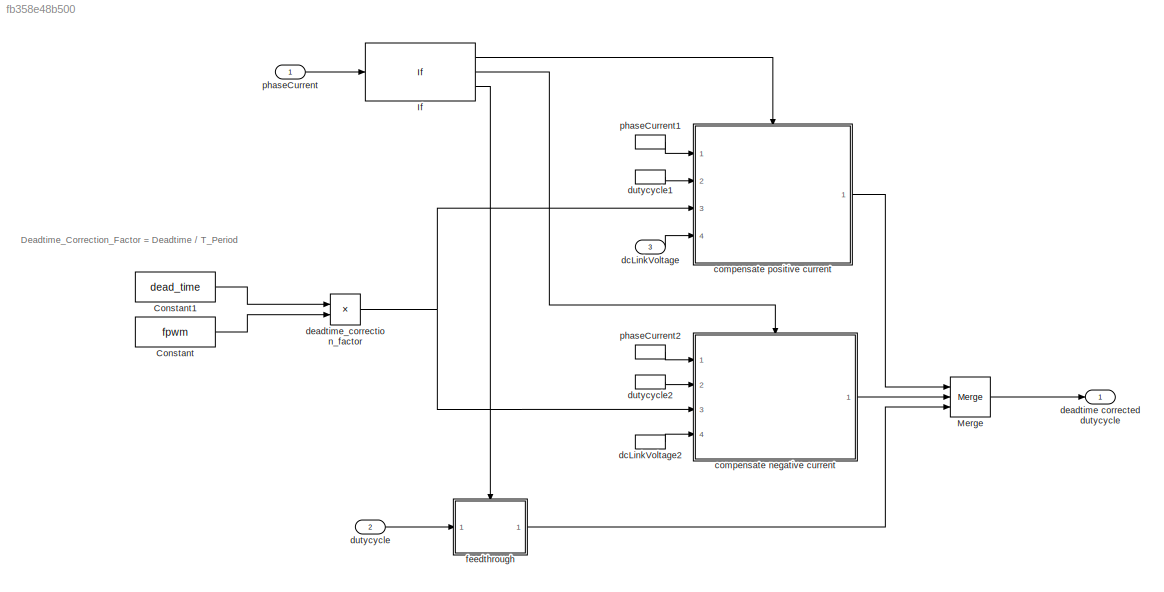
MODEL slx_fb358e48b500
KIND model
CONFIG AbsTol = auto
CONFIG EnableMultiTasking = off
CONFIG FixedStep = auto
CONFIG MaxStep = auto
CONFIG MinStep = auto
CONFIG PostLoadFcn = , if any(exist('dsrtsu_mdlpostloadfcn', 'file') == [2, 3, 6]), try dsrtsu_mdlpostloadfcn('Execute', bdroot); catch fprintf('Error in PostLoadFcn (dsrtsu_mdlpostloadfcn) for model "%s":\n %s\n', bdroot, lasterr); end, end, \n
CONFIG RelTol = 1e-3
CONFIG SampleTimeConstraint = Unconstrained
CONFIG SolverName = FixedStepAuto
CONFIG StartTime = 0.0
CONFIG StopTime = 10.0
BLOCK [Constant] Constant
  Value = fpwm
BLOCK [Constant] Constant1
  Value = dead_time
BLOCK [If] If
  ElseIfExpressions = u1 < 0
  Ports = [1, 3]
BLOCK [Merge] Merge
  Inputs = 3
  Ports = [3, 1]
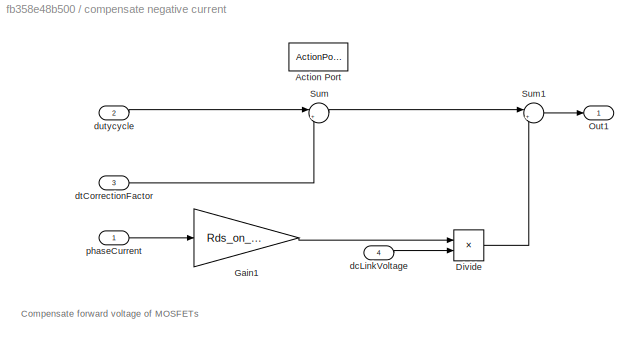
BLOCK [SubSystem] compensate negative current
  Ports = [4, 1, 0, 0, 0, 0, 0, 1]
  RequestExecContextInheritance = off
  TreatAsAtomicUnit = on
BLOCK [ActionPort] compensate negative current/Action Port
  ActionPortLabel = elseif(u1 < 0)
BLOCK [Product] compensate negative current/Divide
  Inputs = */
  Ports = [2, 1]
BLOCK [Gain] compensate negative current/Gain1
  Gain = Rds_on_module
BLOCK [Outport] compensate negative current/Out1
  VectorParamsAs1DForOutWhenUnconnected = off
BLOCK [Sum] compensate negative current/Sum
  Inputs = |+-
  Ports = [2, 1]
BLOCK [Sum] compensate negative current/Sum1
  Inputs = |+-
  Ports = [2, 1]
BLOCK [Inport] compensate negative current/dcLinkVoltage
  Port = 4
BLOCK [Inport] compensate negative current/dtCorrectionFactor
  Port = 3
BLOCK [Inport] compensate negative current/dutycycle
  Port = 2
BLOCK [Inport] compensate negative current/phaseCurrent
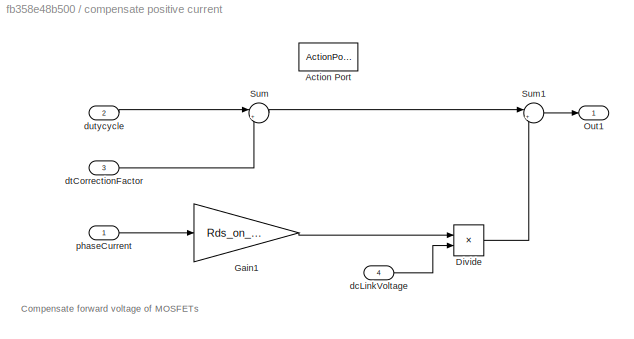
BLOCK [SubSystem] compensate positive current
  Ports = [4, 1, 0, 0, 0, 0, 0, 1]
  RequestExecContextInheritance = off
  TreatAsAtomicUnit = on
BLOCK [ActionPort] compensate positive current/Action Port
  ActionPortLabel = if(u1 > 0)
BLOCK [Product] compensate positive current/Divide
  Inputs = */
  Ports = [2, 1]
BLOCK [Gain] compensate positive current/Gain1
  Gain = Rds_on_module
BLOCK [Outport] compensate positive current/Out1
  VectorParamsAs1DForOutWhenUnconnected = off
BLOCK [Sum] compensate positive current/Sum
  Inputs = |++
  Ports = [2, 1]
BLOCK [Sum] compensate positive current/Sum1
  Inputs = |++
  Ports = [2, 1]
BLOCK [Inport] compensate positive current/dcLinkVoltage
  Port = 4
BLOCK [Inport] compensate positive current/dtCorrectionFactor
  Port = 3
BLOCK [Inport] compensate positive current/dutycycle
  Port = 2
BLOCK [Inport] compensate positive current/phaseCurrent
BLOCK [Inport] dcLinkVoltage
  Port = 3
BLOCK [InportShadow] dcLinkVoltage2
  Port = 3
BLOCK [Outport] deadtime corrected dutycycle
  VectorParamsAs1DForOutWhenUnconnected = off
BLOCK [Product] deadtime_correction_factor
  Ports = [2, 1]
BLOCK [Inport] dutycycle
  Port = 2
BLOCK [InportShadow] dutycycle1
  Port = 2
BLOCK [InportShadow] dutycycle2
  Port = 2
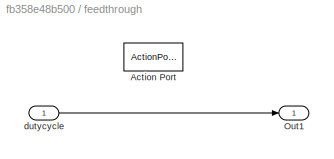
BLOCK [SubSystem] feedthrough
  Ports = [1, 1, 0, 0, 0, 0, 0, 1]
  RequestExecContextInheritance = off
  TreatAsAtomicUnit = on
BLOCK [ActionPort] feedthrough/Action Port
  ActionPortLabel = else
BLOCK [Outport] feedthrough/Out1
  VectorParamsAs1DForOutWhenUnconnected = off
BLOCK [Inport] feedthrough/dutycycle
BLOCK [Inport] phaseCurrent
BLOCK [InportShadow] phaseCurrent1
BLOCK [InportShadow] phaseCurrent2
ANNOTATION (root): Deadtime_Correction_Factor = Deadtime / T_Period
ANNOTATION compensate negative current: Compensate forward voltage of MOSFETs
ANNOTATION compensate positive current: Compensate forward voltage of MOSFETs
LINE Constant1:1 -> deadtime_correction_factor:1
LINE Constant:1 -> deadtime_correction_factor:2
LINE If:1 -> compensate positive current:ifaction
LINE If:2 -> compensate negative current:ifaction
LINE If:3 -> feedthrough:ifaction
LINE Merge:1 -> deadtime corrected dutycycle:1
LINE compensate negative current/Divide:1 -> compensate negative current/Sum1:2
LINE compensate negative current/Gain1:1 -> compensate negative current/Divide:1
LINE compensate negative current/Sum1:1 -> compensate negative current/Out1:1
LINE compensate negative current/Sum:1 -> compensate negative current/Sum1:1
LINE compensate negative current/dcLinkVoltage:1 -> compensate negative current/Divide:2
LINE compensate negative current/dtCorrectionFactor:1 -> compensate negative current/Sum:2
LINE compensate negative current/dutycycle:1 -> compensate negative current/Sum:1
LINE compensate negative current/phaseCurrent:1 -> compensate negative current/Gain1:1
LINE compensate negative current:1 -> Merge:2
LINE compensate positive current/Divide:1 -> compensate positive current/Sum1:2
LINE compensate positive current/Gain1:1 -> compensate positive current/Divide:1
LINE compensate positive current/Sum1:1 -> compensate positive current/Out1:1
LINE compensate positive current/Sum:1 -> compensate positive current/Sum1:1
LINE compensate positive current/dcLinkVoltage:1 -> compensate positive current/Divide:2
LINE compensate positive current/dtCorrectionFactor:1 -> compensate positive current/Sum:2
LINE compensate positive current/dutycycle:1 -> compensate positive current/Sum:1
LINE compensate positive current/phaseCurrent:1 -> compensate positive current/Gain1:1
LINE compensate positive current:1 -> Merge:1
LINE dcLinkVoltage2:1 -> compensate negative current:4
LINE dcLinkVoltage:1 -> compensate positive current:4
NET deadtime_correction_factor:1 -> compensate negative current:3, compensate positive current:3
LINE dutycycle1:1 -> compensate positive current:2
LINE dutycycle2:1 -> compensate negative current:2
LINE dutycycle:1 -> feedthrough:1
LINE feedthrough/dutycycle:1 -> feedthrough/Out1:1
LINE feedthrough:1 -> Merge:3
LINE phaseCurrent1:1 -> compensate positive current:1
LINE phaseCurrent2:1 -> compensate negative current:1
LINE phaseCurrent:1 -> If:1
note: NET lines group one-source signal fan-out (src -> all destinations, sorted); 1:1 wires keep LINE
